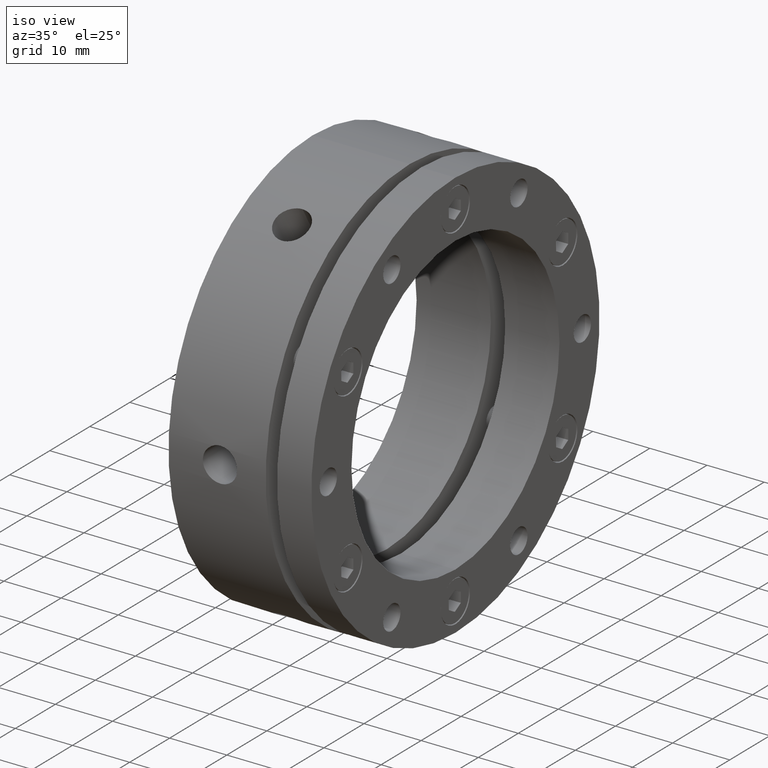
[diagram: clean part render]
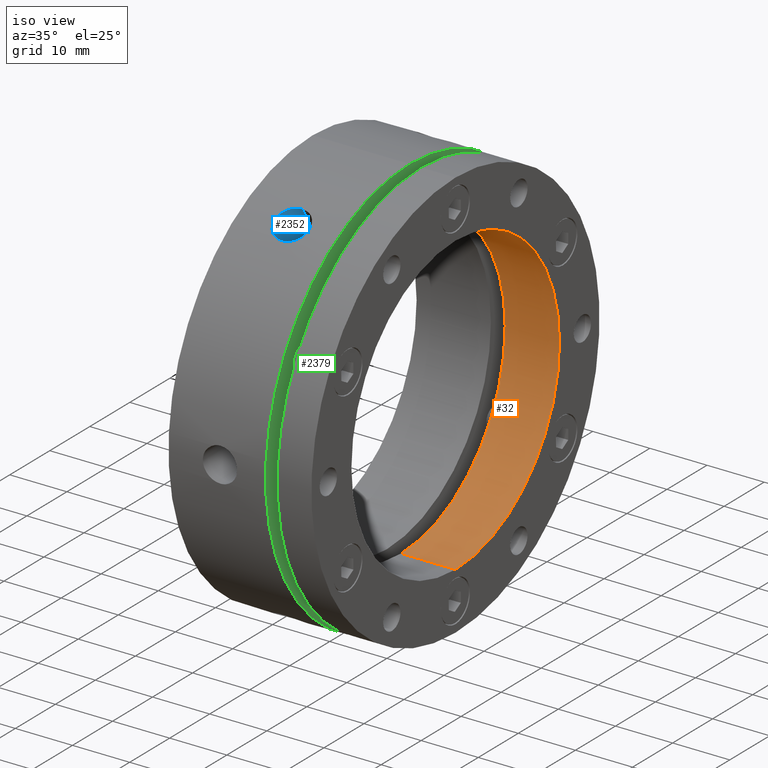
[diagram: same view with three faces highlighted in distinct colors, each labeled with its STEP entity id]
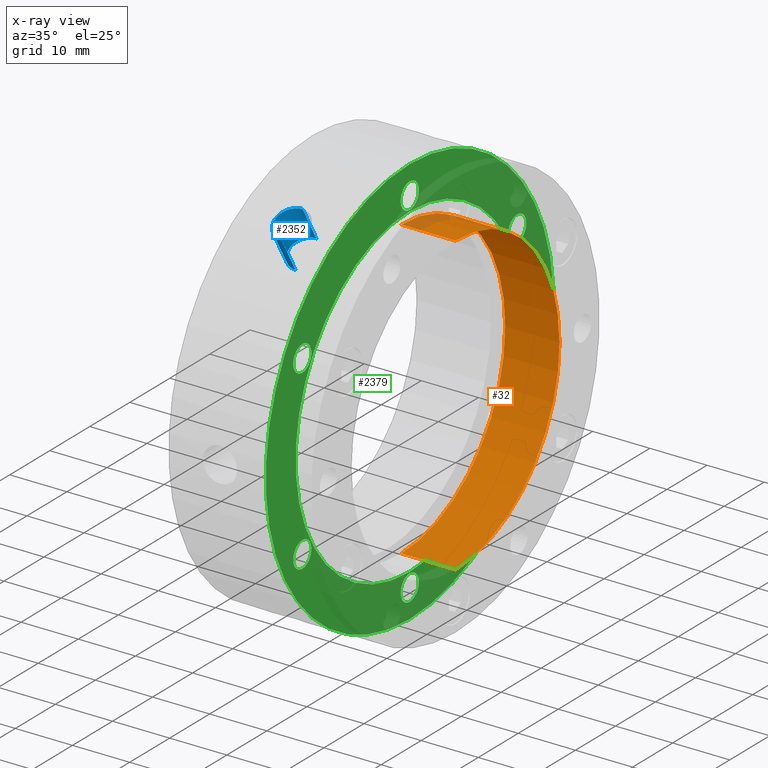
[diagram: x-ray of the same camera — body ghosted, the three highlighted faces saturated]
A machine part, iso view with three faces highlighted in distinct colors.
The next image is the same camera in x-ray (body ghosted, the three faces saturated) — at least one of them is partly hidden behind the body in this view.
Their STEP definitions:

[orange] entity #32 — the highlighted cylindrical surface (partial cylindrical patch) has radius 26 mm, axis along (1, 0, 0).
#32 = ADVANCED_FACE ( 'NONE', ( #555 ), #560, .F. ) ;
#112 = EDGE_LOOP ( 'NONE', ( #270, #271, #272, #273 ) ) ;
#270 = ORIENTED_EDGE ( 'NONE', *, *, #4673, .F. ) ;
#271 = ORIENTED_EDGE ( 'NONE', *, *, #1390, .T. ) ;
#272 = ORIENTED_EDGE ( 'NONE', *, *, #4721, .T. ) ;
#273 = ORIENTED_EDGE ( 'NONE', *, *, #1426, .F. ) ;
#555 = FACE_OUTER_BOUND ( 'NONE', #112, .T. ) ;
#560 = CYLINDRICAL_SURFACE ( 'NONE', #866, 26.00000000000000400 ) ;
#726 = CIRCLE ( 'NONE', #909, 26.00000000000000400 ) ;
#764 = CIRCLE ( 'NONE', #1011, 26.00000000000000400 ) ;
#866 = AXIS2_PLACEMENT_3D ( 'NONE', #1640, #1635, #1639 ) ;
#909 = AXIS2_PLACEMENT_3D ( 'NONE', #2152, #2153, #2154 ) ;
#1011 = AXIS2_PLACEMENT_3D ( 'NONE', #2573, #2574, #2575 ) ;
#1103 = VERTEX_POINT ( 'NONE', #2052 ) ;
#1105 = VERTEX_POINT ( 'NONE', #2054 ) ;
#1147 = VERTEX_POINT ( 'NONE', #2084 ) ;
#1161 = VERTEX_POINT ( 'NONE', #2096 ) ;
#1390 = EDGE_CURVE ( 'NONE', #1147, #1161, #726, .T. ) ;
#1426 = EDGE_CURVE ( 'NONE', #1103, #1105, #764, .T. ) ;
#1635 = DIRECTION ( 'NONE',  ( 1.000000000000000000, 0.0000000000000000000, 0.0000000000000000000 ) ) ;
#1639 = DIRECTION ( 'NONE',  ( 0.0000000000000000000, 0.0000000000000000000, -1.000000000000000000 ) ) ;
#1640 = CARTESIAN_POINT ( 'NONE',  ( 12.49999999999999300, 0.0000000000000000000, 0.0000000000000000000 ) ) ;
#2052 = CARTESIAN_POINT ( 'NONE',  ( 24.99999999999999300, 3.184081677783118600E-015, 26.00000000000000400 ) ) ;
#2054 = CARTESIAN_POINT ( 'NONE',  ( 24.99999999999999300, 0.0000000000000000000, -26.00000000000000400 ) ) ;
#2084 = CARTESIAN_POINT ( 'NONE',  ( 15.50000000000000500, 3.184081677783118600E-015, 26.00000000000000400 ) ) ;
#2096 = CARTESIAN_POINT ( 'NONE',  ( 15.50000000000000500, 0.0000000000000000000, -26.00000000000000400 ) ) ;
#2152 = CARTESIAN_POINT ( 'NONE',  ( 15.50000000000000500, 0.0000000000000000000, 0.0000000000000000000 ) ) ;
#2153 = DIRECTION ( 'NONE',  ( -1.000000000000000000, -0.0000000000000000000, -0.0000000000000000000 ) ) ;
#2154 = DIRECTION ( 'NONE',  ( 0.0000000000000000000, 0.0000000000000000000, -1.000000000000000000 ) ) ;
#2573 = CARTESIAN_POINT ( 'NONE',  ( 24.99999999999999300, 0.0000000000000000000, 0.0000000000000000000 ) ) ;
#2574 = DIRECTION ( 'NONE',  ( -1.000000000000000000, -0.0000000000000000000, -0.0000000000000000000 ) ) ;
#2575 = DIRECTION ( 'NONE',  ( 0.0000000000000000000, 0.0000000000000000000, -1.000000000000000000 ) ) ;
#4169 = LINE ( 'NONE', #4374, #4172 ) ;
#4172 = VECTOR ( 'NONE', #4375, 1000.000000000000000 ) ;
#4244 = LINE ( 'NONE', #4478, #4246 ) ;
#4246 = VECTOR ( 'NONE', #4474, 1000.000000000000000 ) ;
#4374 = CARTESIAN_POINT ( 'NONE',  ( 12.49999999999999300, 3.184081677783118600E-015, 26.00000000000000400 ) ) ;
#4375 = DIRECTION ( 'NONE',  ( 1.000000000000000000, 0.0000000000000000000, 0.0000000000000000000 ) ) ;
#4474 = DIRECTION ( 'NONE',  ( 1.000000000000000000, 0.0000000000000000000, 0.0000000000000000000 ) ) ;
#4478 = CARTESIAN_POINT ( 'NONE',  ( 12.49999999999999300, 0.0000000000000000000, -26.00000000000000400 ) ) ;
#4673 = EDGE_CURVE ( 'NONE', #1147, #1103, #4169, .T. ) ;
#4721 = EDGE_CURVE ( 'NONE', #1161, #1105, #4244, .T. ) ;

[blue] entity #2352 — the highlighted cylindrical surface (edge-blend (fillet) strip) has radius 3 mm, axis along (0, -0.5, 0.866).
#60 = AXIS2_PLACEMENT_3D ( 'NONE', #2936, #2937, #2938 ) ;
#202 = EDGE_LOOP ( 'NONE', ( #1549, #1548, #1547, #1546 ) ) ;
#610 = LINE ( 'NONE', #1725, #613 ) ;
#613 = VECTOR ( 'NONE', #1718, 1000.000000000000100 ) ;
#649 = LINE ( 'NONE', #1840, #652 ) ;
#652 = VECTOR ( 'NONE', #1845, 1000.000000000000100 ) ;
#829 = CIRCLE ( 'NONE', #60, 2.999999999999999600 ) ;
#917 = EDGE_CURVE ( 'NONE', #1176, #1140, #610, .T. ) ;
#923 = EDGE_CURVE ( 'NONE', #1140, #1162, #1612, .T. ) ;
#941 = EDGE_CURVE ( 'NONE', #1121, #1162, #649, .T. ) ;
#1121 = VERTEX_POINT ( 'NONE', #2066 ) ;
#1140 = VERTEX_POINT ( 'NONE', #2080 ) ;
#1162 = VERTEX_POINT ( 'NONE', #2097 ) ;
#1176 = VERTEX_POINT ( 'NONE', #2108 ) ;
#1546 = ORIENTED_EDGE ( 'NONE', *, *, #917, .F. ) ;
#1547 = ORIENTED_EDGE ( 'NONE', *, *, #923, .F. ) ;
#1548 = ORIENTED_EDGE ( 'NONE', *, *, #941, .T. ) ;
#1549 = ORIENTED_EDGE ( 'NONE', *, *, #2243, .F. ) ;
#1612 = B_SPLINE_CURVE_WITH_KNOTS ( 'NONE', 3,
 ( #1746, #1744, #1739, #1747, #1748, #1749, #1750, #1751, #1752, #1753, #1754, #1755, #1756, #1757, #1758, #1759, #1760, #1761, #1762, #1763, #1764, #1765, #1766, #1767, #1768, #1769, #1770, #1771, #1772, #1773, #1774, #1775, #1776, #1777 ),
 .UNSPECIFIED., .F., .F.,
 ( 4, 2, 2, 2, 2, 2, 2, 2, 2, 2, 2, 2, 2, 2, 2, 2, 4 ),
 ( 0.01407420756792272300, 0.01466054576618134100, 0.01524688396443995800, 0.01583322216269857100, 0.01641956036095718700, 0.01700589855921580400, 0.01759223675747441700, 0.01817857495573303000, 0.01876491315399164700, 0.01935125135225026400, 0.01993758955050887700, 0.02052392774876749300, 0.02111026594702611000, 0.02169660414528472300, 0.02228294234354334000, 0.02286928054180195600, 0.02345561874006056900 ),
 .UNSPECIFIED. ) ;
#1718 = DIRECTION ( 'NONE',  ( 0.0000000000000000000, -0.4999999999999998300, 0.8660254037844387100 ) ) ;
#1725 = CARTESIAN_POINT ( 'NONE',  ( 8.999999999999989300, -18.84807621135331600, 26.64582562299425200 ) ) ;
#1739 = CARTESIAN_POINT ( 'NONE',  ( 8.605465509249395200, -20.51932510680675000, 29.57970215548234800 ) ) ;
#1744 = CARTESIAN_POINT ( 'NONE',  ( 8.804273640657116900, -20.53546732600542100, 29.56847276581197900 ) ) ;
#1746 = CARTESIAN_POINT ( 'NONE',  ( 8.999999999999989300, -20.53546732600541700, 29.56847276581197200 ) ) ;
#1747 = CARTESIAN_POINT ( 'NONE',  ( 8.220740910826176400, -20.45600636016512700, 29.62352589140530400 ) ) ;
#1748 = CARTESIAN_POINT ( 'NONE',  ( 8.033740460032543500, -20.40917607112419700, 29.65588006776603100 ) ) ;
#1749 = CARTESIAN_POINT ( 'NONE',  ( 7.670520412402527000, -20.28471392248558700, 29.74115114750589600 ) ) ;
#1750 = CARTESIAN_POINT ( 'NONE',  ( 7.495015201651212600, -20.20684848975292900, 29.79421296299000900 ) ) ;
#1751 = CARTESIAN_POINT ( 'NONE',  ( 7.170137846764142800, -20.02628058470449800, 29.91588103189542000 ) ) ;
#1752 = CARTESIAN_POINT ( 'NONE',  ( 7.018686927094674600, -19.92296009138450700, 29.98491850932406400 ) ) ;
#1753 = CARTESIAN_POINT ( 'NONE',  ( 6.738631649274442000, -19.68868609803634200, 30.13926536176182200 ) ) ;
#1754 = CARTESIAN_POINT ( 'NONE',  ( 6.614556434709188100, -19.56149235681720800, 30.22208549683762900 ) ) ;
#1755 = CARTESIAN_POINT ( 'NONE',  ( 6.397403695422694300, -19.28771315548788900, 30.39754194397304900 ) ) ;
#1756 = CARTESIAN_POINT ( 'NONE',  ( 6.303502110922761600, -19.13933193012234200, 30.49129414177759800 ) ) ;
#1757 = CARTESIAN_POINT ( 'NONE',  ( 6.153021403580331700, -18.83042998539630400, 30.68302383626635800 ) ) ;
#1758 = CARTESIAN_POINT ( 'NONE',  ( 6.096312241019567100, -18.67078050785778500, 30.78049590873912300 ) ) ;
#1759 = CARTESIAN_POINT ( 'NONE',  ( 6.019610627081464200, -18.34091356975499900, 30.97818365539344000 ) ) ;
#1760 = CARTESIAN_POINT ( 'NONE',  ( 5.999860601935536900, -18.16985236130753700, 31.07886364329807400 ) ) ;
#1761 = CARTESIAN_POINT ( 'NONE',  ( 6.000140897399117700, -17.82647415677755700, 31.27708617068042300 ) ) ;
#1762 = CARTESIAN_POINT ( 'NONE',  ( 6.019735498116331100, -17.65684985877571500, 31.37311620477085200 ) ) ;
#1763 = CARTESIAN_POINT ( 'NONE',  ( 6.096241800471474900, -17.32165000230134300, 31.55942345055080300 ) ) ;
#1764 = CARTESIAN_POINT ( 'NONE',  ( 6.154090896485076500, -17.15430749675010700, 31.65063551524381000 ) ) ;
#1765 = CARTESIAN_POINT ( 'NONE',  ( 6.304914644798854400, -16.83404669259996600, 31.82212856116374400 ) ) ;
#1766 = CARTESIAN_POINT ( 'NONE',  ( 6.397166316741064800, -16.68147756952454600, 31.90227129704647500 ) ) ;
#1767 = CARTESIAN_POINT ( 'NONE',  ( 6.615066126482527200, -16.39169482817697300, 32.05212861063711900 ) ) ;
#1768 = CARTESIAN_POINT ( 'NONE',  ( 6.741805449167399500, -16.25400785042518200, 32.12205464197906200 ) ) ;
#1769 = CARTESIAN_POINT ( 'NONE',  ( 7.018600708287248600, -16.00647654371189100, 32.24611409580343500 ) ) ;
#1770 = CARTESIAN_POINT ( 'NONE',  ( 7.169637035334652400, -15.89498365598731100, 32.30110764311665900 ) ) ;
#1771 = CARTESIAN_POINT ( 'NONE',  ( 7.497663617130168500, -15.69761730772408000, 32.39748248331271400 ) ) ;
#1772 = CARTESIAN_POINT ( 'NONE',  ( 7.672161951687311200, -15.61358423844537300, 32.43796544436924000 ) ) ;
#1773 = CARTESIAN_POINT ( 'NONE',  ( 8.033157443096415700, -15.47841224455913300, 32.50268249435119800 ) ) ;
#1774 = CARTESIAN_POINT ( 'NONE',  ( 8.222325900999187800, -15.42626069457647400, 32.52740333748664600 ) ) ;
#1775 = CARTESIAN_POINT ( 'NONE',  ( 8.609582617256677400, -15.35654391301086400, 32.56037539624414700 ) ) ;
#1776 = CARTESIAN_POINT ( 'NONE',  ( 8.804273354309666300, -15.33931490329878500, 32.56847276581196100 ) ) ;
#1777 = CARTESIAN_POINT ( 'NONE',  ( 8.999999999999989300, -15.33931490329878700, 32.56847276581196800 ) ) ;
#1840 = CARTESIAN_POINT ( 'NONE',  ( 8.999999999999989300, -13.65192378864668400, 29.64582562299424900 ) ) ;
#1845 = DIRECTION ( 'NONE',  ( 0.0000000000000000000, -0.4999999999999998300, 0.8660254037844387100 ) ) ;
#2066 = CARTESIAN_POINT ( 'NONE',  ( 8.999999999999989300, -11.90192379210090800, 26.61473670775441700 ) ) ;
#2080 = CARTESIAN_POINT ( 'NONE',  ( 8.999999999999989300, -20.53546732600541700, 29.56847276581197200 ) ) ;
#2097 = CARTESIAN_POINT ( 'NONE',  ( 8.999999999999989300, -15.33931490329878700, 32.56847276581196800 ) ) ;
#2108 = CARTESIAN_POINT ( 'NONE',  ( 8.999999999999989300, -17.09807620789908400, 23.61473671174301700 ) ) ;
#2243 = EDGE_CURVE ( 'NONE', #1121, #1176, #829, .T. ) ;
#2352 = ADVANCED_FACE ( 'NONE', ( #3715 ), #3724, .F. ) ;
#2936 = CARTESIAN_POINT ( 'NONE',  ( 8.999999999999989300, -14.50000000000000000, 25.11473670974871200 ) ) ;
#2937 = DIRECTION ( 'NONE',  ( 0.0000000000000000000, -0.4999999999999998900, 0.8660254037844388200 ) ) ;
#2938 = DIRECTION ( 'NONE',  ( 0.0000000000000000000, -0.8660254037844389300, -0.4999999999999993300 ) ) ;
#3287 = DIRECTION ( 'NONE',  ( 0.0000000000000000000, -0.8660254037844388200, -0.4999999999999996100 ) ) ;
#3289 = DIRECTION ( 'NONE',  ( 0.0000000000000000000, -0.4999999999999998900, 0.8660254037844388200 ) ) ;
#3291 = CARTESIAN_POINT ( 'NONE',  ( 8.999999999999989300, -16.25000000000000000, 28.14582562299424900 ) ) ;
#3715 = FACE_OUTER_BOUND ( 'NONE', #202, .T. ) ;
#3724 = CYLINDRICAL_SURFACE ( 'NONE', #3890, 2.999999999999997800 ) ;
#3890 = AXIS2_PLACEMENT_3D ( 'NONE', #3291, #3289, #3287 ) ;

[green] entity #2379 — the highlighted planar face has unit normal (-1, 0, 0).
#48 = AXIS2_PLACEMENT_3D ( 'NONE', #2865, #2866, #2867 ) ;
#49 = AXIS2_PLACEMENT_3D ( 'NONE', #2868, #2869, #2870 ) ;
#50 = AXIS2_PLACEMENT_3D ( 'NONE', #2871, #2872, #2873 ) ;
#51 = AXIS2_PLACEMENT_3D ( 'NONE', #2874, #2875, #2876 ) ;
#52 = AXIS2_PLACEMENT_3D ( 'NONE', #2877, #2878, #2879 ) ;
#53 = AXIS2_PLACEMENT_3D ( 'NONE', #2880, #2881, #2882 ) ;
#54 = AXIS2_PLACEMENT_3D ( 'NONE', #2883, #2884, #2885 ) ;
#62 = AXIS2_PLACEMENT_3D ( 'NONE', #2983, #2984, #2985 ) ;
#66 = AXIS2_PLACEMENT_3D ( 'NONE', #3078, #3079, #3080 ) ;
#68 = AXIS2_PLACEMENT_3D ( 'NONE', #3090, #3091, #3092 ) ;
#70 = AXIS2_PLACEMENT_3D ( 'NONE', #3102, #3103, #3104 ) ;
#71 = AXIS2_PLACEMENT_3D ( 'NONE', #3107, #3108, #3109 ) ;
#73 = AXIS2_PLACEMENT_3D ( 'NONE', #3119, #3120, #3121 ) ;
#428 = ORIENTED_EDGE ( 'NONE', *, *, #2230, .F. ) ;
#429 = ORIENTED_EDGE ( 'NONE', *, *, #915, .F. ) ;
#430 = ORIENTED_EDGE ( 'NONE', *, *, #2231, .F. ) ;
#431 = ORIENTED_EDGE ( 'NONE', *, *, #2278, .F. ) ;
#432 = ORIENTED_EDGE ( 'NONE', *, *, #2232, .F. ) ;
#433 = ORIENTED_EDGE ( 'NONE', *, *, #2272, .F. ) ;
#434 = ORIENTED_EDGE ( 'NONE', *, *, #2233, .F. ) ;
#435 = ORIENTED_EDGE ( 'NONE', *, *, #2266, .F. ) ;
#436 = ORIENTED_EDGE ( 'NONE', *, *, #2234, .F. ) ;
#437 = ORIENTED_EDGE ( 'NONE', *, *, #2261, .F. ) ;
#438 = ORIENTED_EDGE ( 'NONE', *, *, #2235, .F. ) ;
#439 = ORIENTED_EDGE ( 'NONE', *, *, #2248, .F. ) ;
#440 = ORIENTED_EDGE ( 'NONE', *, *, #2236, .F. ) ;
#441 = ORIENTED_EDGE ( 'NONE', *, *, #4693, .F. ) ;
#442 = ORIENTED_EDGE ( 'NONE', *, *, #1438, .F. ) ;
#443 = ORIENTED_EDGE ( 'NONE', *, *, #2273, .F. ) ;
#607 = CIRCLE ( 'NONE', #886, 28.50000000000000700 ) ;
#775 = CIRCLE ( 'NONE', #1023, 36.00000000000000700 ) ;
#807 = CIRCLE ( 'NONE', #50, 2.250000000000000400 ) ;
#816 = CIRCLE ( 'NONE', #48, 28.50000000000000700 ) ;
#817 = CIRCLE ( 'NONE', #49, 2.249999999999998700 ) ;
#818 = CIRCLE ( 'NONE', #51, 2.249999999999998700 ) ;
#819 = CIRCLE ( 'NONE', #52, 2.250000000000001800 ) ;
#820 = CIRCLE ( 'NONE', #53, 2.250000000000000400 ) ;
#821 = CIRCLE ( 'NONE', #54, 2.250000000000000400 ) ;
#831 = CIRCLE ( 'NONE', #62, 2.250000000000000400 ) ;
#886 = AXIS2_PLACEMENT_3D ( 'NONE', #1722, #1723, #1724 ) ;
#915 = EDGE_CURVE ( 'NONE', #1075, #1076, #607, .T. ) ;
#1023 = AXIS2_PLACEMENT_3D ( 'NONE', #2613, #2614, #2615 ) ;
#1048 = VERTEX_POINT ( 'NONE', #1997 ) ;
#1049 = VERTEX_POINT ( 'NONE', #1998 ) ;
#1052 = VERTEX_POINT ( 'NONE', #2001 ) ;
#1054 = VERTEX_POINT ( 'NONE', #2003 ) ;
#1055 = VERTEX_POINT ( 'NONE', #2004 ) ;
#1063 = VERTEX_POINT ( 'NONE', #2012 ) ;
#1067 = VERTEX_POINT ( 'NONE', #2016 ) ;
#1068 = VERTEX_POINT ( 'NONE', #2017 ) ;
#1070 = VERTEX_POINT ( 'NONE', #2019 ) ;
#1073 = VERTEX_POINT ( 'NONE', #2022 ) ;
#1074 = VERTEX_POINT ( 'NONE', #2023 ) ;
#1075 = VERTEX_POINT ( 'NONE', #2024 ) ;
#1076 = VERTEX_POINT ( 'NONE', #2025 ) ;
#1079 = VERTEX_POINT ( 'NONE', #2028 ) ;
#1141 = EDGE_LOOP ( 'NONE', ( #432, #433 ) ) ;
#1153 = VERTEX_POINT ( 'NONE', #2089 ) ;
#1172 = VERTEX_POINT ( 'NONE', #2105 ) ;
#1192 = EDGE_LOOP ( 'NONE', ( #440, #441 ) ) ;
#1228 = EDGE_LOOP ( 'NONE', ( #430, #431 ) ) ;
#1240 = EDGE_LOOP ( 'NONE', ( #434, #435 ) ) ;
#1241 = EDGE_LOOP ( 'NONE', ( #428, #429 ) ) ;
#1247 = EDGE_LOOP ( 'NONE', ( #436, #437 ) ) ;
#1249 = EDGE_LOOP ( 'NONE', ( #442, #443 ) ) ;
#1250 = EDGE_LOOP ( 'NONE', ( #438, #439 ) ) ;
#1438 = EDGE_CURVE ( 'NONE', #1153, #1172, #775, .T. ) ;
#1722 = CARTESIAN_POINT ( 'NONE',  ( 16.99999999999999600, 0.0000000000000000000, 0.0000000000000000000 ) ) ;
#1723 = DIRECTION ( 'NONE',  ( 1.000000000000000000, -0.0000000000000000000, -0.0000000000000000000 ) ) ;
#1724 = DIRECTION ( 'NONE',  ( 0.0000000000000000000, 0.0000000000000000000, 1.000000000000000000 ) ) ;
#1997 = CARTESIAN_POINT ( 'NONE',  ( 16.99999999999999600, 26.84678751731760800, -17.75000000000002500 ) ) ;
#1998 = CARTESIAN_POINT ( 'NONE',  ( 16.99999999999999600, 26.84678751731760800, -13.25000000000002500 ) ) ;
#2001 = CARTESIAN_POINT ( 'NONE',  ( 16.99999999999999600, -4.440891999999999900E-015, -33.25000000000002100 ) ) ;
#2003 = CARTESIAN_POINT ( 'NONE',  ( 16.99999999999999600, 26.84678751731763000, 13.24999999999998900 ) ) ;
#2004 = CARTESIAN_POINT ( 'NONE',  ( 16.99999999999999600, 26.84678751731763000, 17.74999999999998900 ) ) ;
#2012 = CARTESIAN_POINT ( 'NONE',  ( 16.99999999999999600, -4.165346470191845000E-015, -28.75000000000001800 ) ) ;
#2016 = CARTESIAN_POINT ( 'NONE',  ( 16.99999999999999600, -26.84678751731762200, -13.25000000000000400 ) ) ;
#2017 = CARTESIAN_POINT ( 'NONE',  ( 16.99999999999999600, -26.84678751731762200, -17.75000000000000400 ) ) ;
#2019 = CARTESIAN_POINT ( 'NONE',  ( 16.99999999999999600, 0.0000000000000000000, 28.75000000000001800 ) ) ;
#2022 = CARTESIAN_POINT ( 'NONE',  ( 16.99999999999999600, -26.84678751731761200, 17.75000000000001400 ) ) ;
#2023 = CARTESIAN_POINT ( 'NONE',  ( 16.99999999999999600, -26.84678751731761200, 13.25000000000001400 ) ) ;
#2024 = CARTESIAN_POINT ( 'NONE',  ( 16.99999999999999600, 3.490243377569957200E-015, -28.50000000000000700 ) ) ;
#2025 = CARTESIAN_POINT ( 'NONE',  ( 16.99999999999999600, 0.0000000000000000000, 28.50000000000000700 ) ) ;
#2028 = CARTESIAN_POINT ( 'NONE',  ( 16.99999999999999600, 2.755455298081546700E-016, 33.25000000000001400 ) ) ;
#2089 = CARTESIAN_POINT ( 'NONE',  ( 16.99999999999999600, 0.0000000000000000000, -36.00000000000000700 ) ) ;
#2105 = CARTESIAN_POINT ( 'NONE',  ( 16.99999999999999600, 4.408728476930471600E-015, 36.00000000000000700 ) ) ;
#2230 = EDGE_CURVE ( 'NONE', #1076, #1075, #816, .T. ) ;
#2231 = EDGE_CURVE ( 'NONE', #1070, #1079, #817, .T. ) ;
#2232 = EDGE_CURVE ( 'NONE', #1074, #1073, #807, .T. ) ;
#2233 = EDGE_CURVE ( 'NONE', #1068, #1067, #818, .T. ) ;
#2234 = EDGE_CURVE ( 'NONE', #1052, #1063, #819, .T. ) ;
#2235 = EDGE_CURVE ( 'NONE', #1048, #1049, #820, .T. ) ;
#2236 = EDGE_CURVE ( 'NONE', #1054, #1055, #821, .T. ) ;
#2248 = EDGE_CURVE ( 'NONE', #1049, #1048, #831, .T. ) ;
#2261 = EDGE_CURVE ( 'NONE', #1063, #1052, #3587, .T. ) ;
#2266 = EDGE_CURVE ( 'NONE', #1067, #1068, #3594, .T. ) ;
#2272 = EDGE_CURVE ( 'NONE', #1073, #1074, #3604, .T. ) ;
#2273 = EDGE_CURVE ( 'NONE', #1172, #1153, #3599, .T. ) ;
#2278 = EDGE_CURVE ( 'NONE', #1079, #1070, #3606, .T. ) ;
#2379 = ADVANCED_FACE ( 'NONE', ( #3773, #3781, #3777, #3775, #3779, #3782, #3783, #3784 ), #3383, .F. ) ;
#2613 = CARTESIAN_POINT ( 'NONE',  ( 16.99999999999999600, 0.0000000000000000000, 0.0000000000000000000 ) ) ;
#2614 = DIRECTION ( 'NONE',  ( -1.000000000000000000, -0.0000000000000000000, -0.0000000000000000000 ) ) ;
#2615 = DIRECTION ( 'NONE',  ( 0.0000000000000000000, 0.0000000000000000000, -1.000000000000000000 ) ) ;
#2865 = CARTESIAN_POINT ( 'NONE',  ( 16.99999999999999600, 0.0000000000000000000, 0.0000000000000000000 ) ) ;
#2866 = DIRECTION ( 'NONE',  ( 1.000000000000000000, -0.0000000000000000000, -0.0000000000000000000 ) ) ;
#2867 = DIRECTION ( 'NONE',  ( 0.0000000000000000000, 0.0000000000000000000, 1.000000000000000000 ) ) ;
#2868 = CARTESIAN_POINT ( 'NONE',  ( 16.99999999999999600, 0.0000000000000000000, 31.00000000000001800 ) ) ;
#2869 = DIRECTION ( 'NONE',  ( 1.000000000000000000, 0.0000000000000000000, 0.0000000000000000000 ) ) ;
#2870 = DIRECTION ( 'NONE',  ( 0.0000000000000000000, 0.0000000000000000000, -1.000000000000000000 ) ) ;
#2871 = CARTESIAN_POINT ( 'NONE',  ( 16.99999999999999600, -26.84678751731761200, 15.50000000000001400 ) ) ;
#2872 = DIRECTION ( 'NONE',  ( 1.000000000000000000, 0.0000000000000000000, 0.0000000000000000000 ) ) ;
#2873 = DIRECTION ( 'NONE',  ( 0.0000000000000000000, 0.0000000000000000000, -1.000000000000000000 ) ) ;
#2874 = CARTESIAN_POINT ( 'NONE',  ( 16.99999999999999600, -26.84678751731762200, -15.50000000000000400 ) ) ;
#2875 = DIRECTION ( 'NONE',  ( 1.000000000000000000, 0.0000000000000000000, 0.0000000000000000000 ) ) ;
#2876 = DIRECTION ( 'NONE',  ( 0.0000000000000000000, 0.0000000000000000000, -1.000000000000000000 ) ) ;
#2877 = CARTESIAN_POINT ( 'NONE',  ( 16.99999999999999600, -4.440891999999999900E-015, -31.00000000000002100 ) ) ;
#2878 = DIRECTION ( 'NONE',  ( 1.000000000000000000, 0.0000000000000000000, 0.0000000000000000000 ) ) ;
#2879 = DIRECTION ( 'NONE',  ( 0.0000000000000000000, 0.0000000000000000000, -1.000000000000000000 ) ) ;
#2880 = CARTESIAN_POINT ( 'NONE',  ( 16.99999999999999600, 26.84678751731760800, -15.50000000000002700 ) ) ;
#2881 = DIRECTION ( 'NONE',  ( 1.000000000000000000, 0.0000000000000000000, 0.0000000000000000000 ) ) ;
#2882 = DIRECTION ( 'NONE',  ( 0.0000000000000000000, 0.0000000000000000000, -1.000000000000000000 ) ) ;
#2883 = CARTESIAN_POINT ( 'NONE',  ( 16.99999999999999600, 26.84678751731763000, 15.49999999999998900 ) ) ;
#2884 = DIRECTION ( 'NONE',  ( 1.000000000000000000, 0.0000000000000000000, 0.0000000000000000000 ) ) ;
#2885 = DIRECTION ( 'NONE',  ( 0.0000000000000000000, 0.0000000000000000000, -1.000000000000000000 ) ) ;
#2983 = CARTESIAN_POINT ( 'NONE',  ( 16.99999999999999600, 26.84678751731760800, -15.50000000000002700 ) ) ;
#2984 = DIRECTION ( 'NONE',  ( 1.000000000000000000, 0.0000000000000000000, 0.0000000000000000000 ) ) ;
#2985 = DIRECTION ( 'NONE',  ( 0.0000000000000000000, 0.0000000000000000000, -1.000000000000000000 ) ) ;
#3078 = CARTESIAN_POINT ( 'NONE',  ( 16.99999999999999600, -4.440891999999999900E-015, -31.00000000000002100 ) ) ;
#3079 = DIRECTION ( 'NONE',  ( 1.000000000000000000, 0.0000000000000000000, 0.0000000000000000000 ) ) ;
#3080 = DIRECTION ( 'NONE',  ( 0.0000000000000000000, 0.0000000000000000000, -1.000000000000000000 ) ) ;
#3090 = CARTESIAN_POINT ( 'NONE',  ( 16.99999999999999600, -26.84678751731762200, -15.50000000000000400 ) ) ;
#3091 = DIRECTION ( 'NONE',  ( 1.000000000000000000, 0.0000000000000000000, 0.0000000000000000000 ) ) ;
#3092 = DIRECTION ( 'NONE',  ( 0.0000000000000000000, 0.0000000000000000000, -1.000000000000000000 ) ) ;
#3102 = CARTESIAN_POINT ( 'NONE',  ( 16.99999999999999600, -26.84678751731761200, 15.50000000000001400 ) ) ;
#3103 = DIRECTION ( 'NONE',  ( 1.000000000000000000, 0.0000000000000000000, 0.0000000000000000000 ) ) ;
#3104 = DIRECTION ( 'NONE',  ( 0.0000000000000000000, 0.0000000000000000000, -1.000000000000000000 ) ) ;
#3107 = CARTESIAN_POINT ( 'NONE',  ( 16.99999999999999600, 0.0000000000000000000, 0.0000000000000000000 ) ) ;
#3108 = DIRECTION ( 'NONE',  ( -1.000000000000000000, -0.0000000000000000000, -0.0000000000000000000 ) ) ;
#3109 = DIRECTION ( 'NONE',  ( 0.0000000000000000000, 0.0000000000000000000, -1.000000000000000000 ) ) ;
#3119 = CARTESIAN_POINT ( 'NONE',  ( 16.99999999999999600, 0.0000000000000000000, 31.00000000000001800 ) ) ;
#3120 = DIRECTION ( 'NONE',  ( 1.000000000000000000, 0.0000000000000000000, 0.0000000000000000000 ) ) ;
#3121 = DIRECTION ( 'NONE',  ( 0.0000000000000000000, 0.0000000000000000000, -1.000000000000000000 ) ) ;
#3379 = DIRECTION ( 'NONE',  ( -1.000000000000000000, 0.0000000000000000000, 0.0000000000000000000 ) ) ;
#3381 = CARTESIAN_POINT ( 'NONE',  ( 16.99999999999999600, 32.25000000000000000, 0.0000000000000000000 ) ) ;
#3383 = PLANE ( 'NONE',  #3918 ) ;
#3385 = DIRECTION ( 'NONE',  ( 0.0000000000000000000, 0.0000000000000000000, 1.000000000000000000 ) ) ;
#3587 = CIRCLE ( 'NONE', #66, 2.250000000000001800 ) ;
#3594 = CIRCLE ( 'NONE', #68, 2.249999999999998700 ) ;
#3599 = CIRCLE ( 'NONE', #71, 36.00000000000000700 ) ;
#3604 = CIRCLE ( 'NONE', #70, 2.250000000000000400 ) ;
#3606 = CIRCLE ( 'NONE', #73, 2.249999999999998700 ) ;
#3773 = FACE_BOUND ( 'NONE', #1241, .T. ) ;
#3775 = FACE_BOUND ( 'NONE', #1240, .T. ) ;
#3777 = FACE_BOUND ( 'NONE', #1141, .T. ) ;
#3779 = FACE_BOUND ( 'NONE', #1247, .T. ) ;
#3781 = FACE_BOUND ( 'NONE', #1228, .T. ) ;
#3782 = FACE_BOUND ( 'NONE', #1250, .T. ) ;
#3783 = FACE_BOUND ( 'NONE', #1192, .T. ) ;
#3784 = FACE_OUTER_BOUND ( 'NONE', #1249, .T. ) ;
#3918 = AXIS2_PLACEMENT_3D ( 'NONE', #3381, #3379, #3385 ) ;
#3985 = AXIS2_PLACEMENT_3D ( 'NONE', #4417, #4418, #4419 ) ;
#4200 = CIRCLE ( 'NONE', #3985, 2.250000000000000400 ) ;
#4417 = CARTESIAN_POINT ( 'NONE',  ( 16.99999999999999600, 26.84678751731763000, 15.49999999999998900 ) ) ;
#4418 = DIRECTION ( 'NONE',  ( 1.000000000000000000, 0.0000000000000000000, 0.0000000000000000000 ) ) ;
#4419 = DIRECTION ( 'NONE',  ( 0.0000000000000000000, 0.0000000000000000000, -1.000000000000000000 ) ) ;
#4693 = EDGE_CURVE ( 'NONE', #1055, #1054, #4200, .T. ) ;